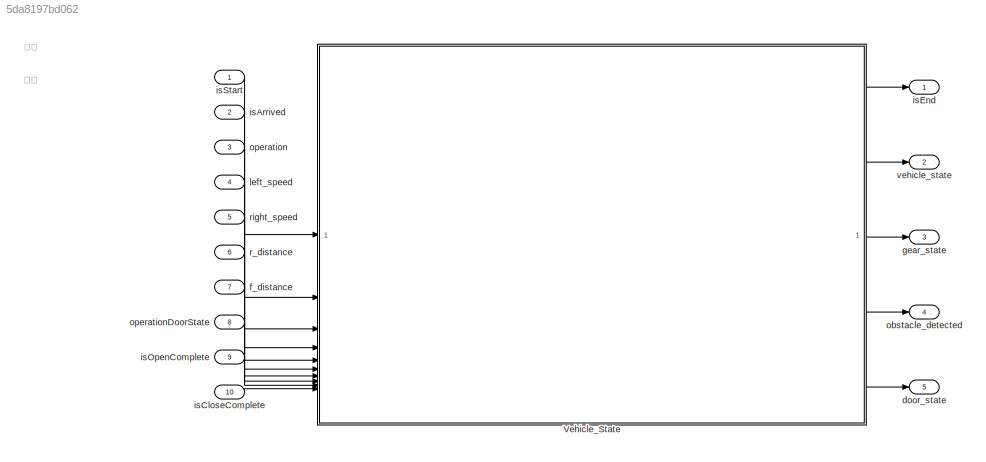
MODEL slx_5da8197bd062
KIND model
CONFIG AbsTol = auto
CONFIG EnableMultiTasking = off
CONFIG FixedStep = auto
CONFIG MaxStep = auto
CONFIG MinStep = auto
CONFIG RelTol = 1e-3
CONFIG SampleTimeConstraint = Unconstrained
CONFIG SolverName = FixedStepAuto
CONFIG StartTime = 0.0
CONFIG StopTime = 10.0
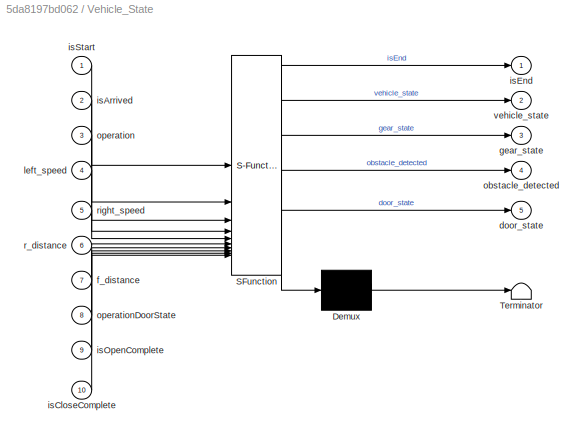
BLOCK [SubSystem] Vehicle_State
  ErrorFcn = Stateflow.Translate.translate
  PermitHierarchicalResolution = ExplicitOnly
  RTWFcnName = State_Control
  RTWFcnNameOpts = User specified
  RTWFileName = Vehicle_State_Controller
  RTWFileNameOpts = User specified
  RTWSystemCode = Reusable function
  SFBlockType = Chart
  TreatAsAtomicUnit = on
BLOCK [Demux] Vehicle_State/ Demux 
  Outputs = 1
BLOCK [S-Function] Vehicle_State/ SFunction 
  EnableBusSupport = on
  FunctionName = sf_sfun
  PortCounts = [10 6]
  SFcnIsStateOwnerBlock = off
  SFunctionDeploymentMode = off
  Tag = Stateflow S-Function 2
BLOCK [Terminator] Vehicle_State/ Terminator 
BLOCK [Outport] Vehicle_State/door_state
  Port = 5
BLOCK [Inport] Vehicle_State/f_distance
  Port = 7
BLOCK [Outport] Vehicle_State/gear_state
  Port = 3
BLOCK [Inport] Vehicle_State/isArrived
  Port = 2
BLOCK [Inport] Vehicle_State/isCloseComplete
  Port = 10
BLOCK [Outport] Vehicle_State/isEnd
BLOCK [Inport] Vehicle_State/isOpenComplete
  Port = 9
BLOCK [Inport] Vehicle_State/isStart
BLOCK [Inport] Vehicle_State/left_speed
  Port = 4
BLOCK [Outport] Vehicle_State/obstacle_detected
  Port = 4
BLOCK [Inport] Vehicle_State/operation
  Port = 3
BLOCK [Inport] Vehicle_State/operationDoorState
  Port = 8
BLOCK [Inport] Vehicle_State/r_distance
  Port = 6
BLOCK [Inport] Vehicle_State/right_speed
  Port = 5
BLOCK [Outport] Vehicle_State/vehicle_state
  Port = 2
BLOCK [Outport] door_state
  Port = 5
BLOCK [Inport] f_distance
  Interpolate = off
  Port = 7
BLOCK [Outport] gear_state
  Port = 3
BLOCK [Inport] isArrived
  Interpolate = off
  Port = 2
BLOCK [Inport] isCloseComplete
  Interpolate = off
  Port = 10
BLOCK [Outport] isEnd
BLOCK [Inport] isOpenComplete
  Interpolate = off
  Port = 9
BLOCK [Inport] isStart
  Interpolate = off
BLOCK [Inport] left_speed
  Interpolate = off
  Port = 4
BLOCK [Outport] obstacle_detected
  Port = 4
BLOCK [Inport] operation
  Interpolate = off
  Port = 3
BLOCK [Inport] operationDoorState
  Interpolate = off
  Port = 8
BLOCK [Inport] r_distance
  Interpolate = off
  Port = 6
BLOCK [Inport] right_speed
  Interpolate = off
  Port = 5
BLOCK [Outport] vehicle_state
  Port = 2
ANNOTATION (root): 라파 라파 라파 275 275 275 275 라파 275
LINE Vehicle_State:1 -> isEnd:1
LINE Vehicle_State:2 -> vehicle_state:1
LINE Vehicle_State:3 -> gear_state:1
LINE Vehicle_State:4 -> obstacle_detected:1
LINE Vehicle_State:5 -> door_state:1
LINE f_distance:1 -> Vehicle_State:7
LINE isArrived:1 -> Vehicle_State:2
LINE isCloseComplete:1 -> Vehicle_State:10
LINE isOpenComplete:1 -> Vehicle_State:9
LINE isStart:1 -> Vehicle_State:1
LINE left_speed:1 -> Vehicle_State:4
LINE operation:1 -> Vehicle_State:3
LINE operationDoorState:1 -> Vehicle_State:8
LINE r_distance:1 -> Vehicle_State:6
LINE right_speed:1 -> Vehicle_State:5
CHART Vehicle_State states=12 transitions=28
  STATE_LABEL 'IDLE\nen:\nisEnd=false;\nvehicle_state = Vehicle_State.IDLE;\n'
  STATE_LABEL 'WORK\nen :\nvehicle_state=Vehicle_State.WORK;\n'
  STATE_LABEL 'GEAR '
  STATE_LABEL 'PARKING\nen :\nobstacle_detected =false;\ngear_state =Gear_State.P;\n'
  STATE_LABEL 'DRIVING\nen :\ngear_state =Gear_State.D;\n'
  STATE_LABEL 'REVERSE\nen :\ngear_state =Gear_State.R;\n'
  STATE_LABEL 'BRAKE\nen :\ngear_state = Gear_State.B;\n'
  STATE_LABEL 'OBSTACLE_DETECTED\nen:\nobstacle_detected =true;\n'
  STATE_LABEL '[operation...\n==OperationMode.DRIVING]'
  STATE_LABEL '[operation...\n==OperationMode.REVERSE]'
  STATE_LABEL '[left_speed==0 &&right_speed==0]'
  STATE_LABEL '[operation...\n==OperationMode.PARKING]'
  STATE_LABEL '[operation...\n==OperationMode.BRKING]'
  STATE_LABEL '[r_distance<=100 ... \n&&r_distance>10]'
  STATE_LABEL '[f_distance<=100 ... \n&&f_distance>10]'
  STATE_LABEL '[operation...\n==OperationMode.BRKING]'
  STATE_LABEL '[f_distance < 10 || r_distance < 10]'
  STATE_LABEL '[f_distance > 100 && r_distance > 100]'
  STATE_LABEL '[left_speed==0 && right_speed==0]'
  STATE_LABEL 'DOOR'
  STATE_LABEL 'DOOR_IDLE\nen:door_state=Door_State.CLOSED;\n'
  STATE_LABEL 'DOOR_OPEN\n\n'
  STATE_LABEL 'DOOR_CLOSE\n if(isCloseComplete==true)\n     isEnd = true;\n end\n'
  STATE_LABEL '[in(GEAR.PARKING) &&isArrived==true]'
  STATE_LABEL '[operationDoorState==OperationDoorState.OPEN]'
  STATE_LABEL '[isOpenComplete==true...\n&&in(GEAR.PARKING)]\n{door_state = Door_State.OPENED;}'
  STATE_LABEL '[operationDoorState==OperationDoorState.CLOSE]'
  STATE_LABEL 'GEAR '
  STATE_LABEL 'PARKING\nen :\nobstacle_detected =false;\ngear_state =Gear_State.P;\n'
  STATE_LABEL 'DRIVING\nen :\ngear_state =Gear_State.D;\n'
  STATE_LABEL 'REVERSE\nen :\ngear_state =Gear_State.R;\n'
  STATE_LABEL 'BRAKE\nen :\ngear_state = Gear_State.B;\n'
  STATE_LABEL 'OBSTACLE_DETECTED\nen:\nobstacle_detected =true;\n'
  STATE_LABEL '[operation...\n==OperationMode.DRIVING]'
  STATE_LABEL '[operation...\n==OperationMode.REVERSE]'
  STATE_LABEL '[left_speed==0 &&right_speed==0]'
  STATE_LABEL '[operation...\n==OperationMode.PARKING]'
  STATE_LABEL '[operation...\n==OperationMode.BRKING]'
  STATE_LABEL '[r_distance<=100 ... \n&&r_distance>10]'
  STATE_LABEL '[f_distance<=100 ... \n&&f_distance>10]'
CHART  states=0 transitions=0
CHART Test Sequence states=3 transitions=3
  STATE_LABEL 'Scenario_1'
  STATE_LABEL 'IDLE\n\n%% Initialize data outputs.\nisStart = true;\nisArrived = false;\noperation = OperationMode.PARKING;\nleft_speed = 0;\nright_speed = 0;\nr_distance = 0;\nf_distance = 0;\noperationDoorState = OperationDoorState.CLOSE;\nisOpenComplete = false;'
  STATE_LABEL 'WORK\n\n%% Initialize data outputs.\nisStart = false;\nisArrived = false;\noperation = OperationMode.DRIVING;\nleft_speed = 10;\nright_speed = 10;\nr_distance = 0;\nf_distance = 0;\noperationDoorState = OperationDoorState.CLOSE;\nisOpenComplete = false;'
  STATE_LABEL '[\ntrue\n]'
  STATE_LABEL 'IDLE\n\n%% Initialize data outputs.\nisStart = true;\nisArrived = false;\noperation = OperationMode.PARKING;\nleft_speed = 0;\nright_speed = 0;\nr_distance = 0;\nf_distance = 0;\noperationDoorState = OperationDoorState.CLOSE;\nisOpenComplete = false;'
  STATE_LABEL 'WORK\n\n%% Initialize data outputs.\nisStart = false;\nisArrived = false;\noperation = OperationMode.DRIVING;\nleft_speed = 10;\nright_speed = 10;\nr_distance = 0;\nf_distance = 0;\noperationDoorState = OperationDoorState.CLOSE;\nisOpenComplete = false;'
